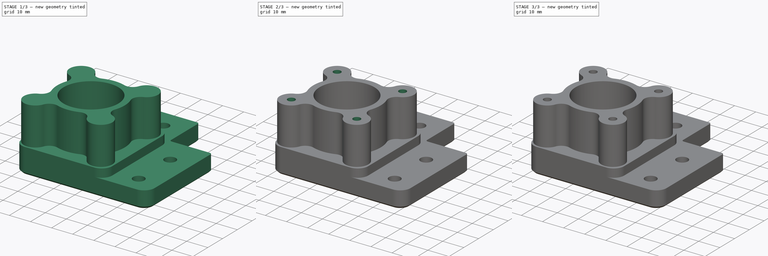
[diagram: build sequence overview — one tinted view per stage of 3, left to right]
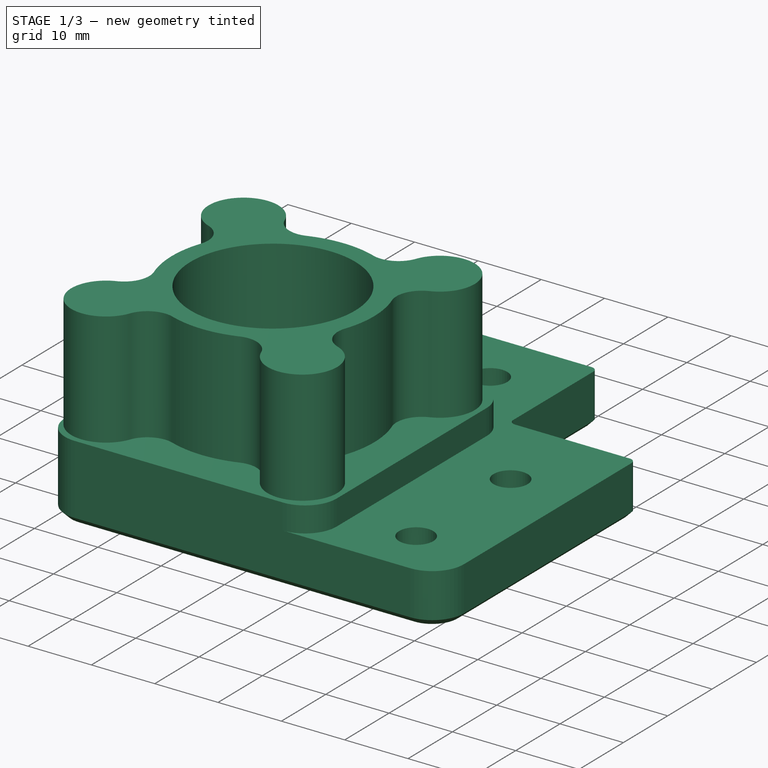
[diagram: stage 1 of 3 — iso view after this stage's code; geometry added in this stage tinted green]
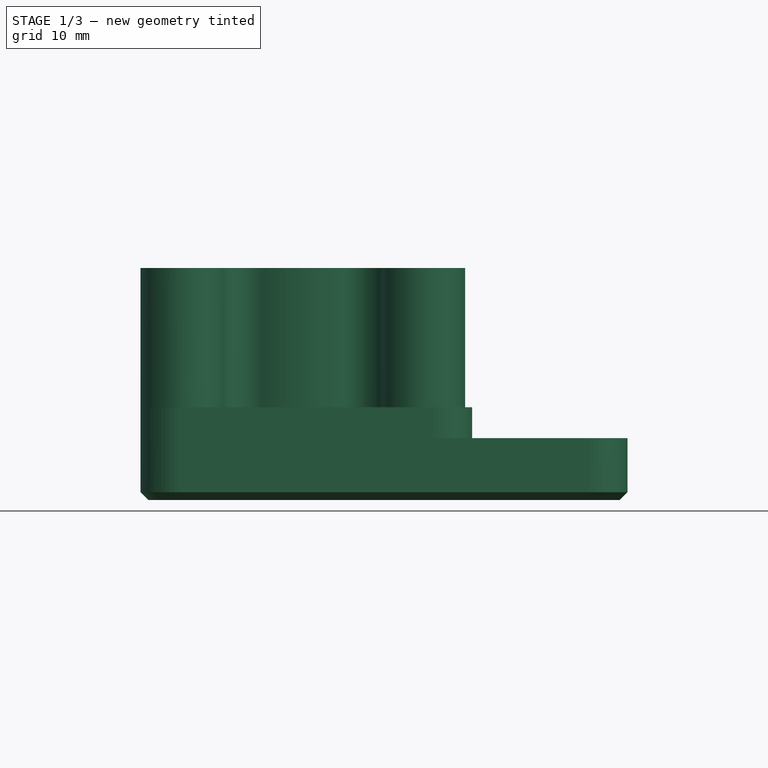
[diagram: stage 1 of 3 — front view after this stage's code; geometry added in this stage tinted green]
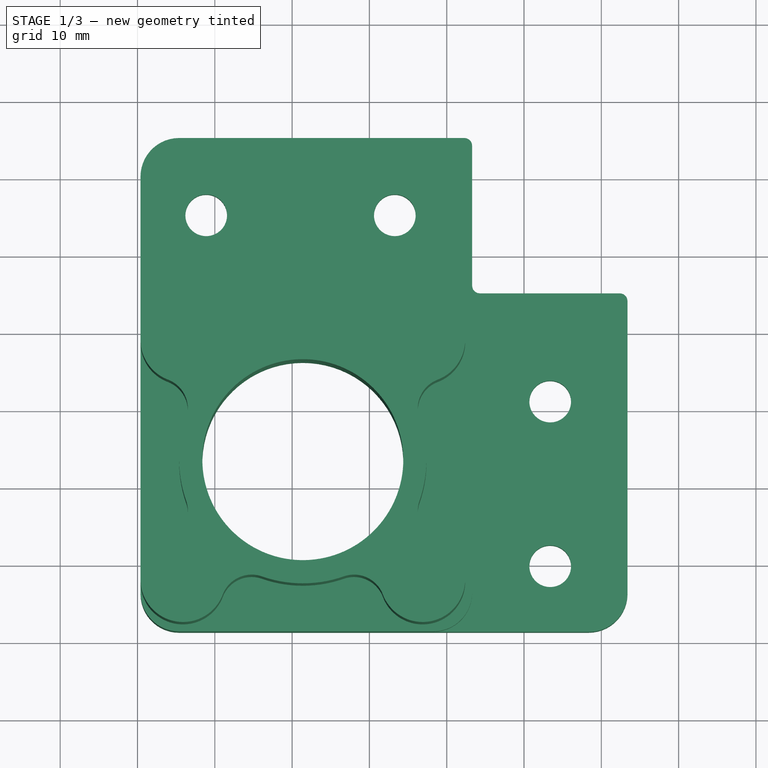
[diagram: stage 1 of 3 — top view after this stage's code; geometry added in this stage tinted green]
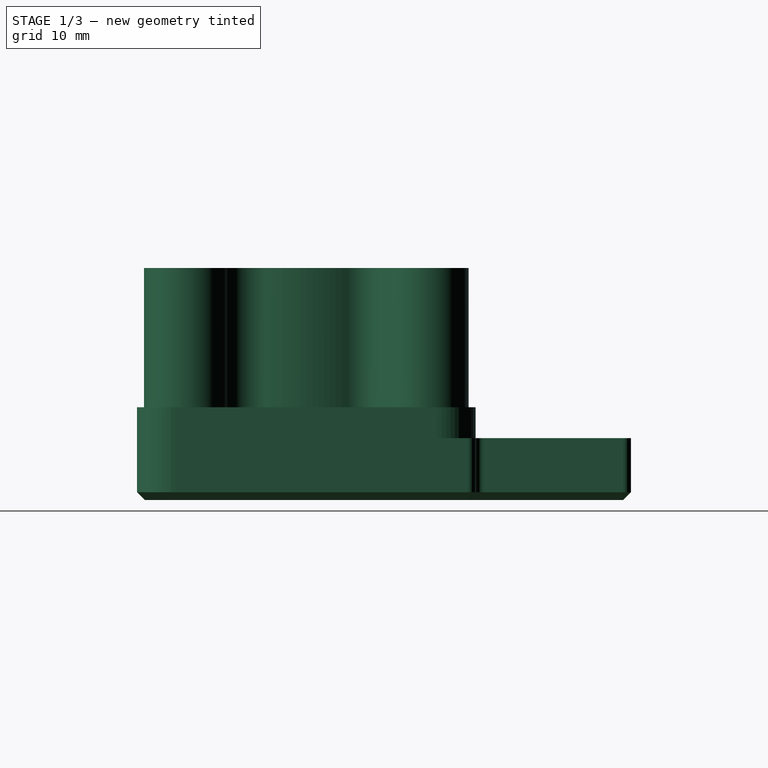
[diagram: stage 1 of 3 — right view after this stage's code; geometry added in this stage tinted green]
FCSTD DOCUMENT  (FreeCAD 1.0R39109 (Git))
Label: z_stepper_small_right
License: All rights reserved
LicenseURL: https://en.wikipedia.org/wiki/All_rights_reserved
objects: PartDesign::Pocket×4, Sketcher::SketchObject×2, Part::Feature×1, Part::Refine×1, PartDesign::FeatureBase×1, PartDesign::Pad×1, PartDesign::Body×1
note: 24 computed .brp shape members not serialized (recipe doc carries the construction recipe); baked Part::Feature solids carry a one-line shape summary decoded from their .brp

FEATURE [Part::Feature] Z_Motor_Mount_Small_Right001_solid  label="Z_Motor_Mount_Small_Right001 (Solid)"
  shape: bbox 63 x 63.9 x 12 mm, 4710 faces (baked)
FEATURE [Part::Refine] Z_Motor_Mount_Small_Right001_solid001  label="Z_Motor_Mount_Small_Right001 (Solid)001"
  Source = -> Z_Motor_Mount_Small_Right001_solid
FEATURE [PartDesign::FeatureBase] BaseFeature
  BaseFeature = -> Z_Motor_Mount_Small_Right001_solid001
  Suppressed = false
FEATURE [Sketcher::SketchObject] Sketch001
  ArcFitTolerance = 1e-06
  AttachmentSupport = -> [BaseFeature]
  FullyConstrained = true
  MakeInternals = false
  MapMode = 5
  Placement = pos=(0,0,12) rot=(0,0,1;0rad)
  sketch-geometry (22):
    g0: Circle [constr] CenterX=66.8869 CenterY=58.7451 CenterZ=0 NormalX=0 NormalY=0 NormalZ=1 AngleXU=0 Radius=1.75
    g1: Circle [constr] CenterX=51.3869 CenterY=43.2451 CenterZ=0 NormalX=0 NormalY=0 NormalZ=1 AngleXU=0 Radius=13
    g2: Circle [constr] CenterX=66.8869 CenterY=27.7451 CenterZ=0 NormalX=0 NormalY=0 NormalZ=1 AngleXU=0 Radius=1.75
    g3: Circle [constr] CenterX=35.8869 CenterY=27.7451 CenterZ=0 NormalX=0 NormalY=0 NormalZ=1 AngleXU=0 Radius=1.75
    g4: Circle [constr] CenterX=35.8869 CenterY=58.7451 CenterZ=0 NormalX=0 NormalY=0 NormalZ=1 AngleXU=0 Radius=1.75
    g5: ArcOfCircle CenterX=51.3869 CenterY=43.2451 CenterZ=0 NormalX=0 NormalY=0 NormalZ=1 AngleXU=0 Radius=16 StartAngle=1.23349 EndAngle=1.9081
    g6: ArcOfCircle CenterX=51.3869 CenterY=43.2451 CenterZ=0 NormalX=0 NormalY=0 NormalZ=1 AngleXU=0 Radius=16 StartAngle=5.94588 EndAngle=6.62049
    g7: ArcOfCircle CenterX=51.3869 CenterY=43.2451 CenterZ=0 NormalX=0 NormalY=0 NormalZ=1 AngleXU=0 Radius=16 StartAngle=4.37508 EndAngle=5.0497
    g8: ArcOfCircle CenterX=51.3869 CenterY=43.2451 CenterZ=0 NormalX=0 NormalY=0 NormalZ=1 AngleXU=0 Radius=16 StartAngle=2.80428 EndAngle=3.4789
    g9: ArcOfCircle CenterX=66.8869 CenterY=58.7451 CenterZ=0 NormalX=0 NormalY=0 NormalZ=1 AngleXU=0 Radius=5.5 StartAngle=5.07536 EndAngle=9.06181
    g10: ArcOfCircle CenterX=66.8869 CenterY=27.7451 CenterZ=0 NormalX=0 NormalY=0 NormalZ=1 AngleXU=0 Radius=5.5 StartAngle=3.50456 EndAngle=7.49101
    g11: ArcOfCircle CenterX=35.8869 CenterY=27.7451 CenterZ=0 NormalX=0 NormalY=0 NormalZ=1 AngleXU=0 Radius=5.5 StartAngle=1.93376 EndAngle=5.92022
    g12: ArcOfCircle CenterX=35.8869 CenterY=58.7451 CenterZ=0 NormalX=0 NormalY=0 NormalZ=1 AngleXU=0 Radius=5.5 StartAngle=0.362968 EndAngle=4.34942
    g13: ArcOfCircle CenterX=58.0058 CenterY=62.118 CenterZ=0 NormalX=0 NormalY=0 NormalZ=1 AngleXU=0 Radius=4 StartAngle=4.37508 EndAngle=5.92022
    g14: ArcOfCircle CenterX=44.7679 CenterY=62.1181 CenterZ=0 NormalX=0 NormalY=0 NormalZ=1 AngleXU=0 Radius=4 StartAngle=3.50456 EndAngle=5.0497
    g15: ArcOfCircle CenterX=32.5139 CenterY=49.864 CenterZ=0 NormalX=0 NormalY=0 NormalZ=1 AngleXU=0 Radius=4 StartAngle=5.94588 EndAngle=7.49101
    g16: ArcOfCircle CenterX=32.5139 CenterY=36.6261 CenterZ=0 NormalX=0 NormalY=0 NormalZ=1 AngleXU=0 Radius=4 StartAngle=5.07536 EndAngle=6.62049
    g17: ArcOfCircle CenterX=44.7679 CenterY=24.3721 CenterZ=0 NormalX=0 NormalY=0 NormalZ=1 AngleXU=0 Radius=4 StartAngle=1.23349 EndAngle=2.77862
    g18: ArcOfCircle CenterX=58.0058 CenterY=24.3721 CenterZ=0 NormalX=0 NormalY=0 NormalZ=1 AngleXU=0 Radius=4 StartAngle=0.362968 EndAngle=1.9081
    g19: ArcOfCircle CenterX=70.2599 CenterY=36.6261 CenterZ=0 NormalX=0 NormalY=0 NormalZ=1 AngleXU=0 Radius=4 StartAngle=2.80429 EndAngle=4.34942
    g20: ArcOfCircle CenterX=70.2599 CenterY=49.864 CenterZ=0 NormalX=0 NormalY=0 NormalZ=1 AngleXU=0 Radius=4 StartAngle=1.93376 EndAngle=3.4789
    g21: Circle CenterX=51.3869 CenterY=43.2451 CenterZ=0 NormalX=0 NormalY=0 NormalZ=1 AngleXU=0 Radius=13
  constraints (57):
    c: PointOnObject(g-4,g1)
    c: PointOnObject(g-5,g1)
    c: PointOnObject(g-3,g1)
    c: PointOnObject(g-8,g0)
    c: PointOnObject(g-7,g0)
    c: PointOnObject(g-6,g0)
    c: Horizontal(g0,g4)
    c: Horizontal(g2,g3)
    c: Vertical(g4,g3)
    c: Vertical(g0,g2)
    c: Equal(g0,g4)
    c: Equal(g4,g3)
    c: Equal(g3,g2)
    c: DistanceX(g4,g0) = 31
    c: DistanceY(g2,g0) = 31
    c: Coincident(g5,g1)
    c: Radius(g5) = 16
    c: Coincident(g6,g1)
    c: Coincident(g7,g1)
    c: Coincident(g8,g1)
    c: Equal(g5,g6)
    c: Equal(g6,g7)
    c: Equal(g7,g8)
    c: Coincident(g9,g0)
    c: Radius(g9) = 5.5
    c: Coincident(g10,g2)
    c: Coincident(g11,g3)
    c: Coincident(g12,g4)
    c: Equal(g9,g10)
    c: Equal(g10,g11)
    c: Equal(g11,g12)
    c: Tangent(g20,g9) = 1.5708
    c: Tangent(g20,g6) = 1.5708
    c: Tangent(g19,g6) = 1.5708
    c: Tangent(g19,g10) = 1.5708
    c: Tangent(g18,g10) = 1.5708
    c: Tangent(g18,g7) = 1.5708
    c: Tangent(g17,g7) = 1.5708
    c: Tangent(g17,g11) = 1.5708
    c: Tangent(g16,g11) = 1.5708
    c: Tangent(g16,g8) = 1.5708
    c: Tangent(g15,g8) = 1.5708
    c: Tangent(g15,g12) = 1.5708
    c: Tangent(g14,g12) = 1.5708
    c: Tangent(g14,g5) = 1.5708
    c: Tangent(g13,g5) = 1.5708
    c: Tangent(g13,g9) = 1.5708
    c: Radius(g13) = 4
    c: Equal(g13,g20)
    c: Equal(g20,g19)
    c: Equal(g19,g18)
    c: Equal(g18,g17)
    c: Equal(g17,g16)
    c: Equal(g16,g14)
    c: Equal(g13,g15)
    c: Coincident(g21,g1)
    c: PointOnObject(g-3,g21)
FEATURE [PartDesign::Pad] Pad  label="Pad_Spacer"
  BaseFeature = -> BaseFeature
  Direction = (0,0,1)
  Length = 18
  Length2 = 10
  Profile = -> Sketch001
  ReferenceAxis = -> Sketch001 [N_Axis]
  Refine = true
  Suppressed = false
  Type = 0
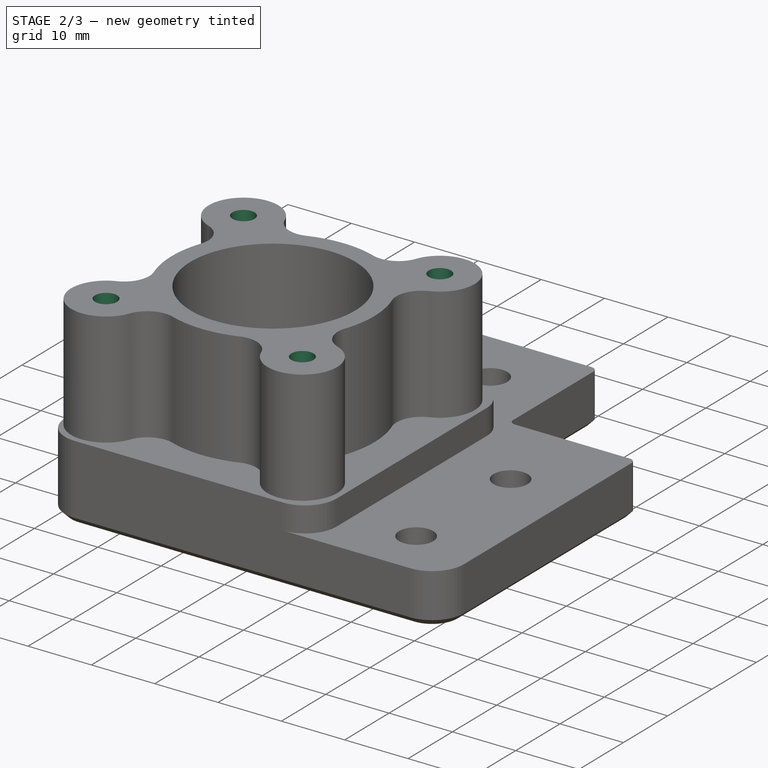
[diagram: stage 2 of 3 — iso view after this stage's code; geometry added in this stage tinted green]
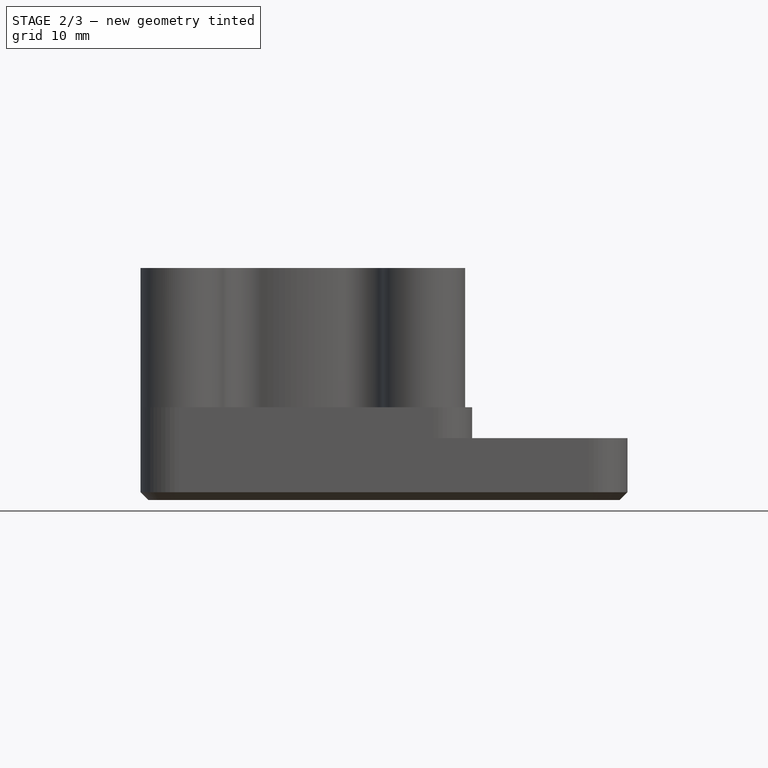
[diagram: stage 2 of 3 — front view after this stage's code; geometry added in this stage tinted green]
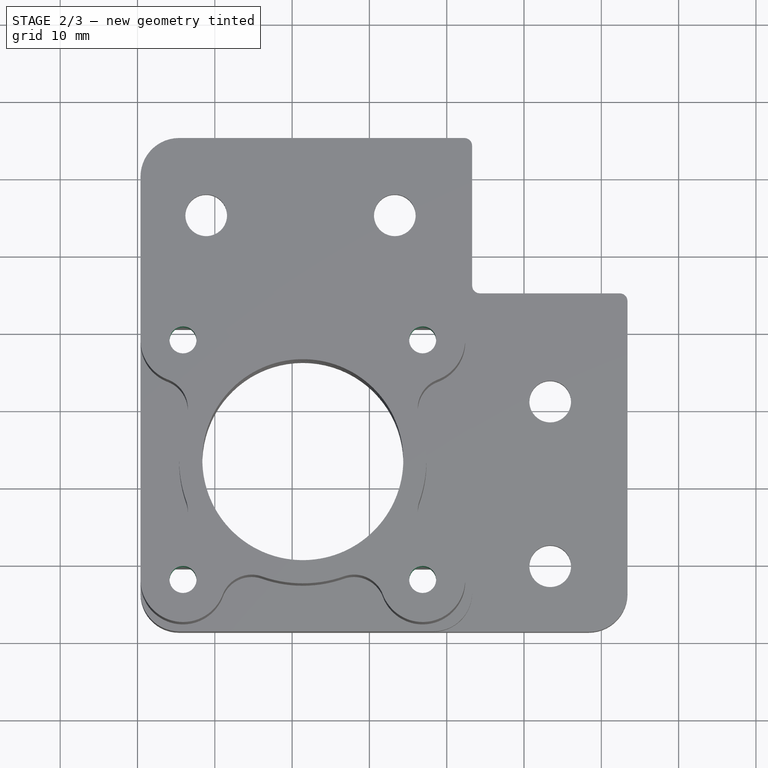
[diagram: stage 2 of 3 — top view after this stage's code; geometry added in this stage tinted green]
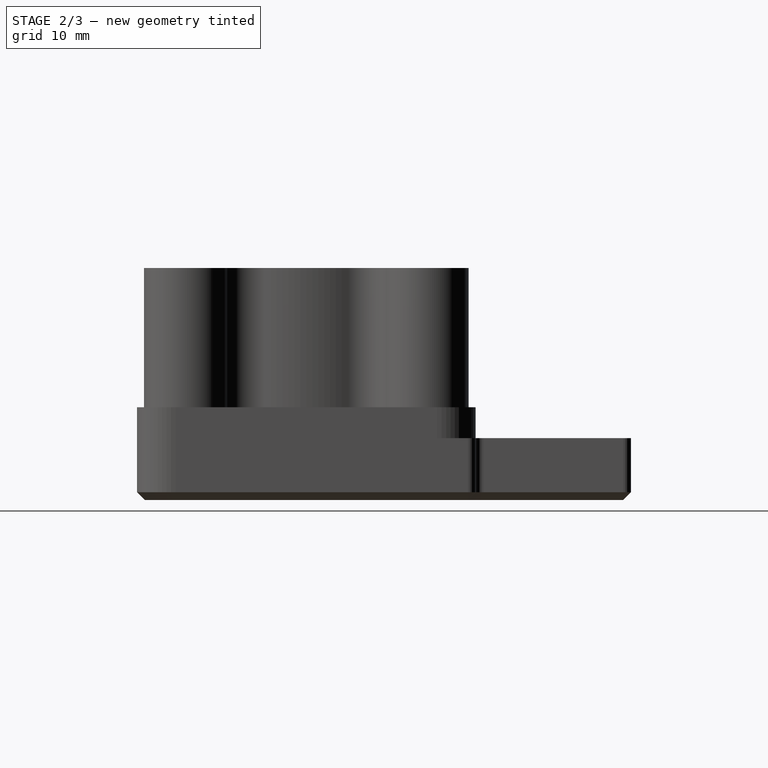
[diagram: stage 2 of 3 — right view after this stage's code; geometry added in this stage tinted green]
FEATURE [PartDesign::Pocket] Pocket  label="Pocket_Holes"
  BaseFeature = -> Pad
  Direction = (0,0,1)
  Length = 5
  Length2 = 5
  Profile = -> Pad [Face2786,Face2789,Face2787,Face2788]
  Refine = true
  Suppressed = false
  Type = 1
FEATURE [Sketcher::SketchObject] Sketch
  ArcFitTolerance = 1e-06
  AttachmentSupport = -> [Pocket]
  ExternalGeometry = -> [Pad]
  FullyConstrained = true
  MakeInternals = false
  MapMode = 5
  Placement = pos=(0,0,3.39999) rot=(1,0,0;3.14159rad)
  sketch-geometry (16):
    g0: LineSegment StartX=65.1369 StartY=-25.9951 StartZ=0 EndX=65.1369 EndY=-29.4951 EndZ=0
    g1: LineSegment StartX=65.1369 StartY=-29.4951 StartZ=0 EndX=68.6369 EndY=-29.4951 EndZ=0
    g2: LineSegment StartX=68.6369 StartY=-29.4951 StartZ=0 EndX=68.6369 EndY=-25.9951 EndZ=0
    g3: LineSegment StartX=68.6369 StartY=-25.9951 StartZ=0 EndX=65.1369 EndY=-25.9951 EndZ=0
    g4: LineSegment StartX=65.1369 StartY=-56.9951 StartZ=0 EndX=65.1369 EndY=-60.4951 EndZ=0
    g5: LineSegment StartX=65.1369 StartY=-60.4951 StartZ=0 EndX=68.6369 EndY=-60.4951 EndZ=0
    g6: LineSegment StartX=68.6369 StartY=-60.4951 StartZ=0 EndX=68.6369 EndY=-56.9951 EndZ=0
    g7: LineSegment StartX=68.6369 StartY=-56.9951 StartZ=0 EndX=65.1369 EndY=-56.9951 EndZ=0
    g8: LineSegment StartX=34.1369 StartY=-56.9951 StartZ=0 EndX=34.1369 EndY=-60.4951 EndZ=0
    g9: LineSegment StartX=34.1369 StartY=-60.4951 StartZ=0 EndX=37.6369 EndY=-60.4951 EndZ=0
    g10: LineSegment StartX=37.6369 StartY=-60.4951 StartZ=0 EndX=37.6369 EndY=-56.9951 EndZ=0
    g11: LineSegment StartX=37.6369 StartY=-56.9951 StartZ=0 EndX=34.1369 EndY=-56.9951 EndZ=0
    g12: LineSegment StartX=34.1369 StartY=-25.9951 StartZ=0 EndX=34.1369 EndY=-29.4951 EndZ=0
    g13: LineSegment StartX=34.1369 StartY=-29.4951 StartZ=0 EndX=37.6369 EndY=-29.4951 EndZ=0
    g14: LineSegment StartX=37.6369 StartY=-29.4951 StartZ=0 EndX=37.6369 EndY=-25.9951 EndZ=0
    g15: LineSegment StartX=37.6369 StartY=-25.9951 StartZ=0 EndX=34.1369 EndY=-25.9951 EndZ=0
  constraints (46):
    c: Coincident(g0,g1)
    c: Coincident(g1,g2)
    c: Coincident(g2,g3)
    c: Coincident(g3,g0)
    c: Vertical(g0)
    c: Vertical(g2)
    c: Horizontal(g1)
    c: Horizontal(g3)
    c: Coincident(g4,g5)
    c: Coincident(g5,g6)
    c: Coincident(g6,g7)
    c: Coincident(g7,g4)
    c: Vertical(g4)
    c: Vertical(g6)
    c: Horizontal(g5)
    c: Horizontal(g7)
    c: Coincident(g8,g9)
    c: Coincident(g9,g10)
    c: Coincident(g10,g11)
    c: Coincident(g11,g8)
    c: Vertical(g8)
    c: Vertical(g10)
    c: Horizontal(g9)
    c: Horizontal(g11)
    c: Coincident(g12,g13)
    c: Coincident(g13,g14)
    c: Coincident(g14,g15)
    c: Coincident(g15,g12)
    c: Vertical(g12)
    c: Vertical(g14)
    c: Horizontal(g13)
    c: Horizontal(g15)
    c: Coincident(g-4,g13)
    c: Coincident(g-3,g12)
    c: Equal(g14,g2)
    c: Equal(g2,g6)
    c: Equal(g6,g10)
    c: Equal(g15,g3)
    c: Equal(g3,g7)
    c: Equal(g7,g11)
    c: Horizontal(g13,g0)
    c: Horizontal(g10,g4)
    c: Vertical(g4,g0)
    c: Vertical(g13,g10)
    c: DistanceY(g10,g13) = 27.5
    c: DistanceX(g13,g0) = 27.5
FEATURE [PartDesign::Pocket] Pocket001  label="Pocket_Counterbore001"
  BaseFeature = -> Pocket
  Direction = (0,0,1)
  Length = 18
  Length2 = 5
  Profile = -> Sketch
  ReferenceAxis = -> Sketch [N_Axis]
  Refine = true
  Suppressed = false
  Type = 0
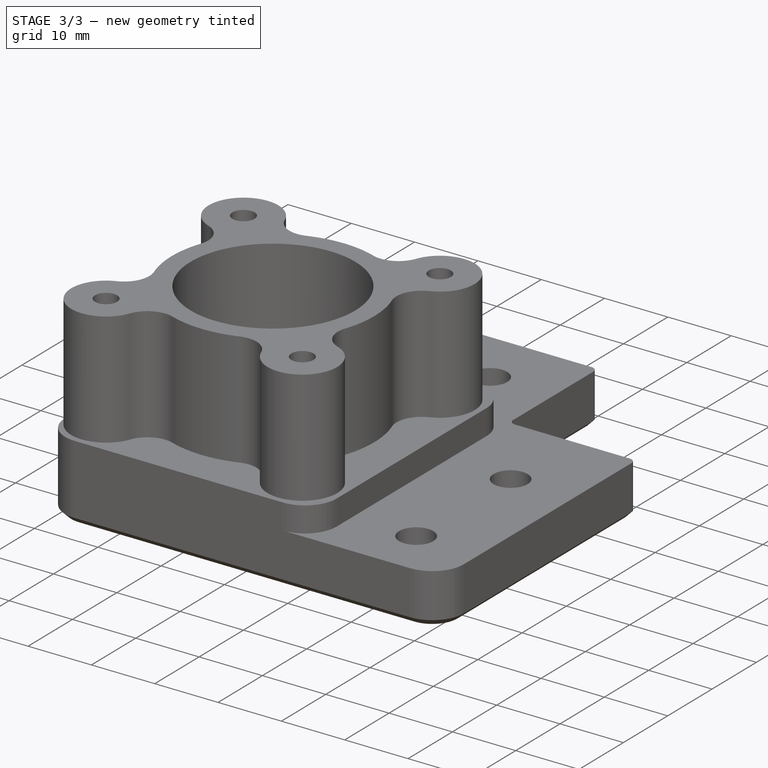
[diagram: stage 3 of 3 — iso view after this stage's code; geometry added in this stage tinted green]
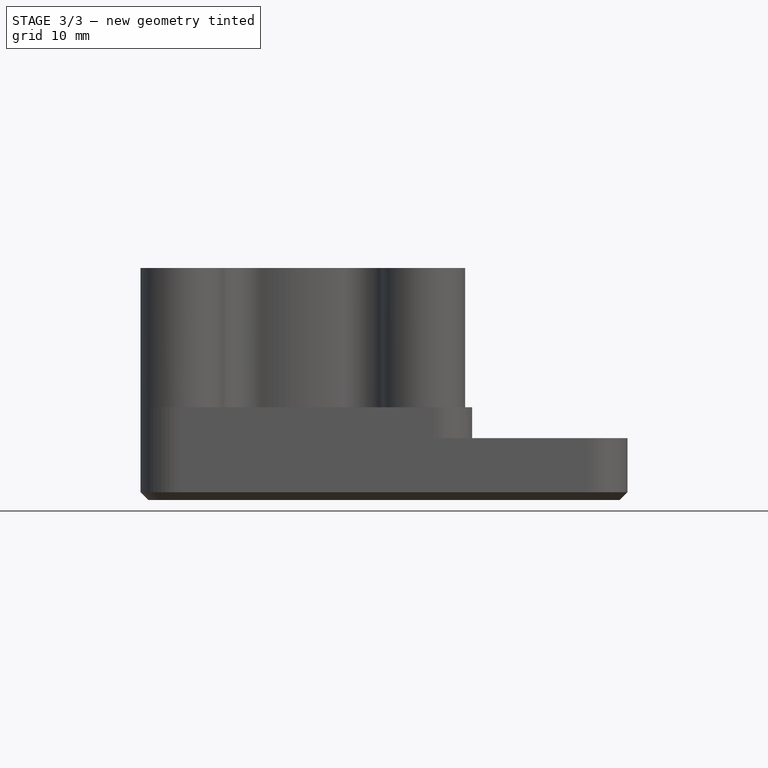
[diagram: stage 3 of 3 — front view after this stage's code; geometry added in this stage tinted green]
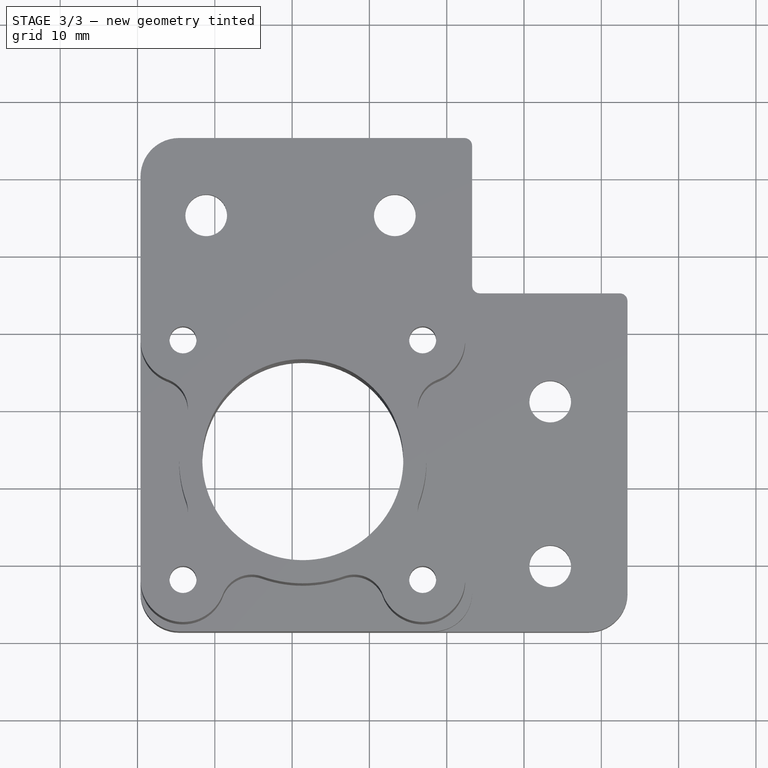
[diagram: stage 3 of 3 — top view after this stage's code; geometry added in this stage tinted green]
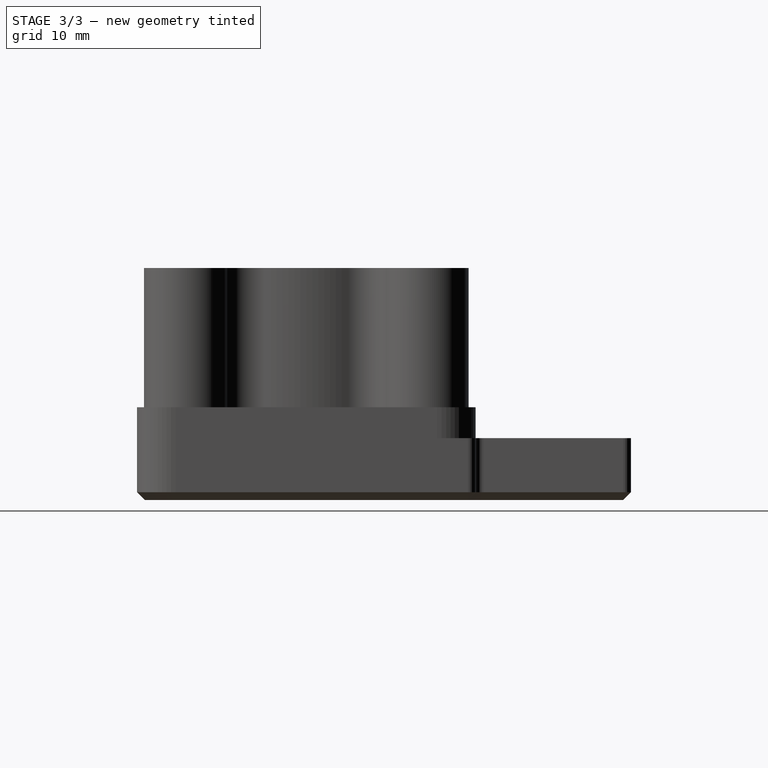
[diagram: stage 3 of 3 — right view after this stage's code; geometry added in this stage tinted green]
FEATURE [PartDesign::Pocket] Pocket002  label="Pocket_Counterbore002"
  BaseFeature = -> Pocket001
  Direction = (0,0,1)
  Length = 18
  Length2 = 5
  Profile = -> Pocket001 [Face2477,Face2474,Face2452,Face2455,Face2456,Face2460,Face2468,Face2464]
  Refine = true
  Suppressed = false
  Type = 0
FEATURE [PartDesign::Pocket] Pocket003  label="Pocket_Counterbore003"
  BaseFeature = -> Pocket002
  Direction = (0,0,1)
  Length = 18
  Length2 = 5
  Profile = -> Pocket002 [Face2480,Face2474,Face2438,Face2444,Face2453,Face2459,Face2470,Face2464]
  Refine = true
  Suppressed = false
  Type = 0
FEATURE [PartDesign::Body] Body
  AllowCompound = false
  BaseFeature = -> Z_Motor_Mount_Small_Right001_solid001
  Group = -> [BaseFeature,Sketch,Sketch001,Pad,Pocket,Pocket001,Pocket002,Pocket003]
  Origin = -> Origin
  Tip = -> Pocket003
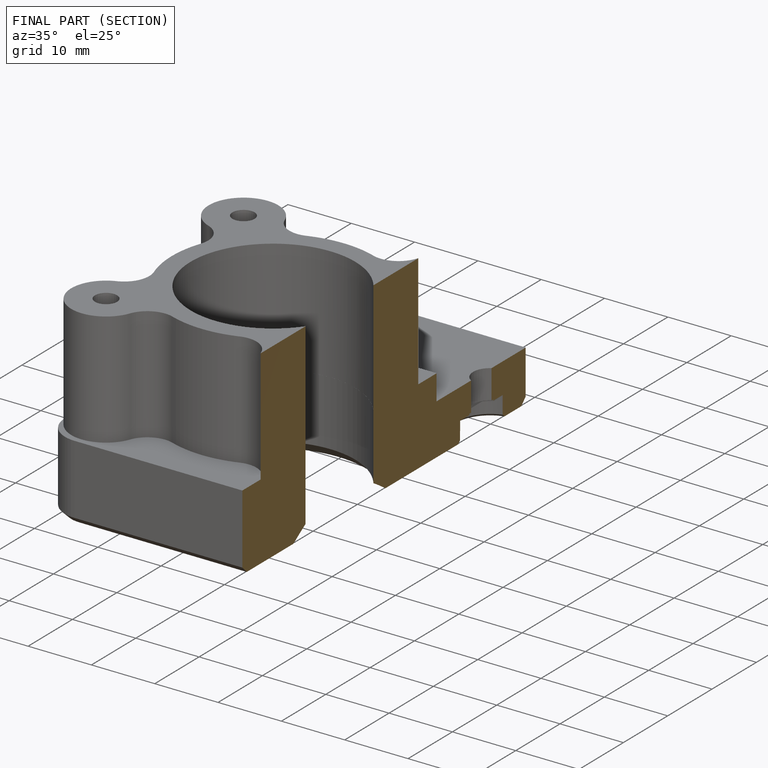
[diagram: finished part — half-section view (interior)]
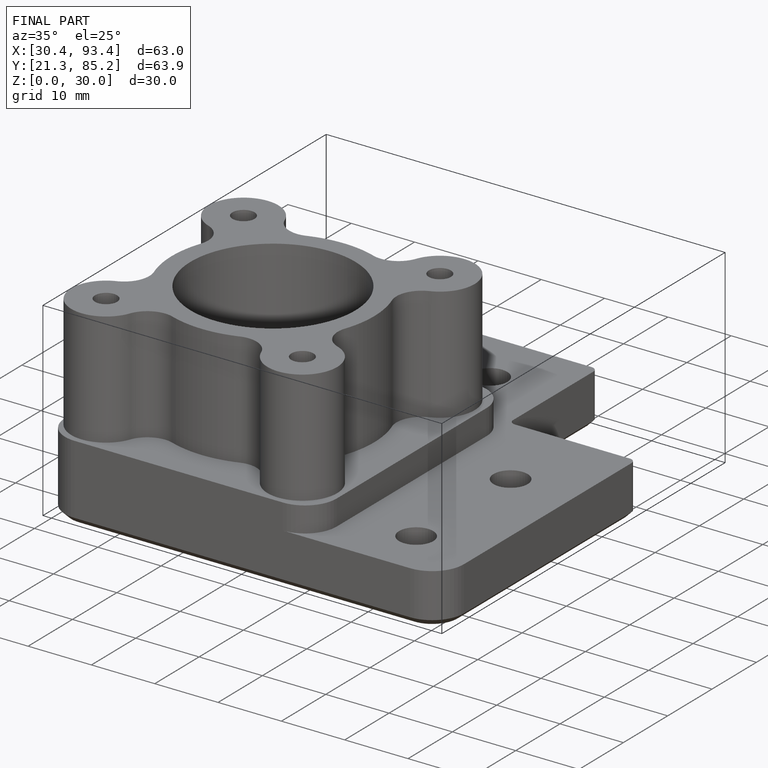
[diagram: finished part — iso view with bounding-box wireframe]
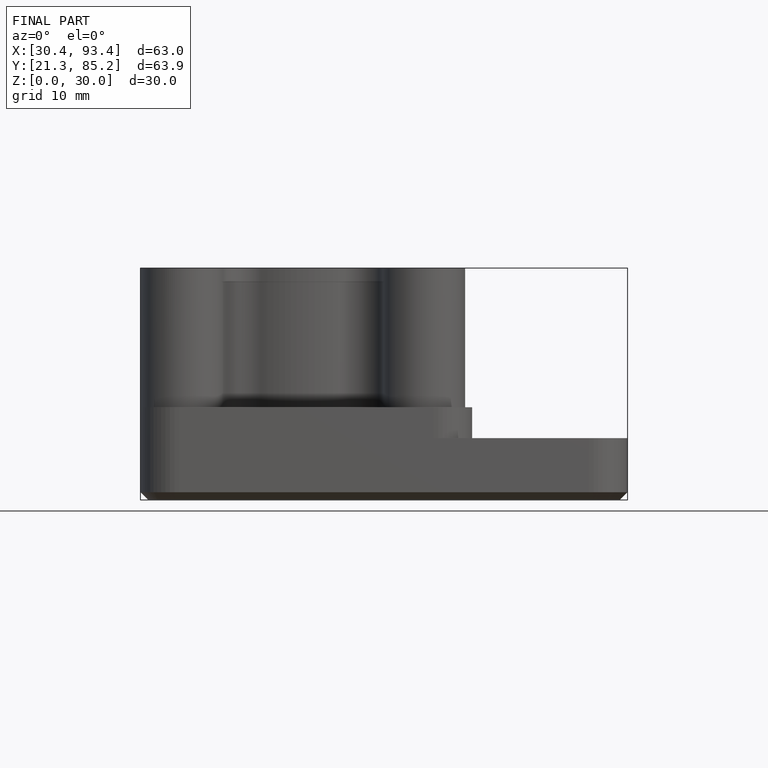
[diagram: finished part — front view with bounding-box wireframe]
